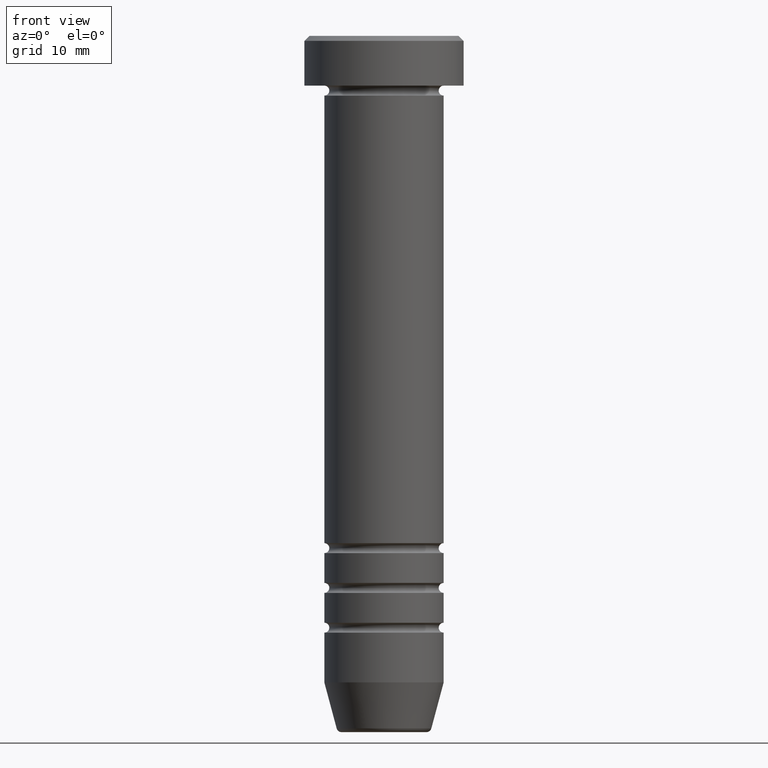
[diagram: clean part render]
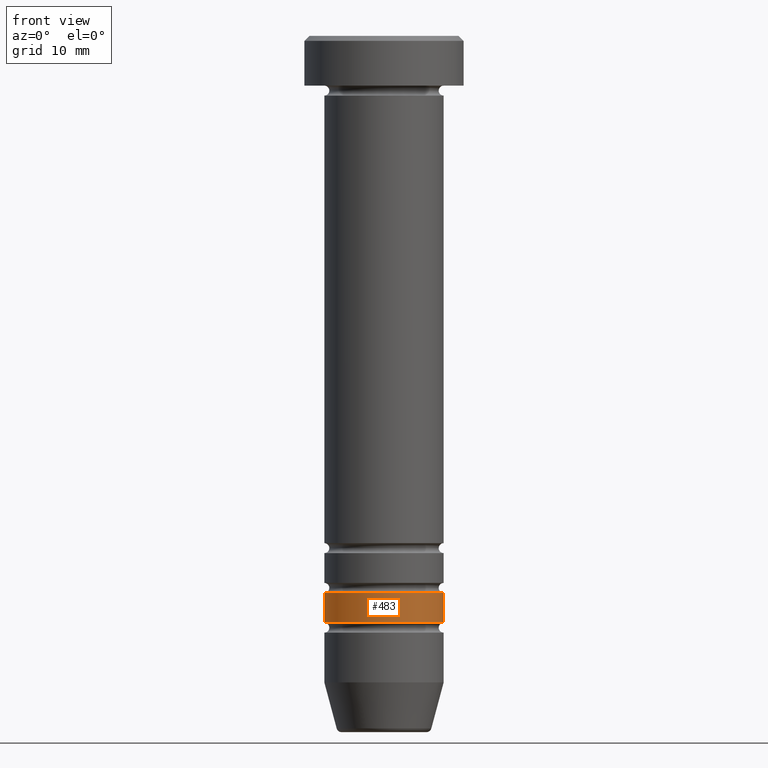
[diagram: same view with one face highlighted and labeled with its STEP entity id]
A machine part, front view. The second image highlights one B-rep face of the part: STEP entity #483.
In plain terms, the highlighted cylindrical surface (partial cylindrical patch) has radius 6 mm, axis along (-0, -0, 1).
Its self-contained STEP definition (entity closure, byte-faithful):
#29 = DIRECTION ( 'NONE',  ( 1.000000000000000000, 0.000000000000000000, 0.000000000000000000 ) ) ;
#47 = CARTESIAN_POINT ( 'NONE',  ( -5.999999999999992895, 7.347880794884112834E-16, -59.00000000000001421 ) ) ;
#60 = EDGE_CURVE ( 'NONE', #176, #953, #712, .T. ) ;
#70 = FACE_OUTER_BOUND ( 'NONE', #333, .T. ) ;
#72 = AXIS2_PLACEMENT_3D ( 'NONE', #1041, #934, #963 ) ;
#95 = LINE ( 'NONE', #511, #523 ) ;
#112 = ORIENTED_EDGE ( 'NONE', *, *, #571, .T. ) ;
#123 = ORIENTED_EDGE ( 'NONE', *, *, #322, .F. ) ;
#161 = DIRECTION ( 'NONE',  ( -0.000000000000000000, -0.000000000000000000, 1.000000000000000000 ) ) ;
#174 = LINE ( 'NONE', #998, #243 ) ;
#176 = VERTEX_POINT ( 'NONE', #1036 ) ;
#200 = CARTESIAN_POINT ( 'NONE',  ( 0.000000000000000000, 0.000000000000000000, -56.00000000000001421 ) ) ;
#242 = AXIS2_PLACEMENT_3D ( 'NONE', #200, #771, #29 ) ;
#243 = VECTOR ( 'NONE', #320, 1000.000000000000000 ) ;
#313 = CARTESIAN_POINT ( 'NONE',  ( 6.000000000000000000, 0.000000000000000000, -56.00000000000001421 ) ) ;
#320 = DIRECTION ( 'NONE',  ( -0.000000000000000000, -0.000000000000000000, 1.000000000000000000 ) ) ;
#322 = EDGE_CURVE ( 'NONE', #923, #176, #95, .T. ) ;
#333 = EDGE_LOOP ( 'NONE', ( #123, #1005, #112, #854 ) ) ;
#337 = DIRECTION ( 'NONE',  ( 1.000000000000000000, 0.000000000000000000, 0.000000000000000000 ) ) ;
#453 = CYLINDRICAL_SURFACE ( 'NONE', #72, 5.999999999999996447 ) ;
#483 = ADVANCED_FACE ( 'NONE', ( #70 ), #453, .T. ) ;
#511 = CARTESIAN_POINT ( 'NONE',  ( -5.999999999999996447, 7.347880794884115792E-16, 0.000000000000000000 ) ) ;
#523 = VECTOR ( 'NONE', #697, 1000.000000000000000 ) ;
#571 = EDGE_CURVE ( 'NONE', #902, #953, #174, .T. ) ;
#635 = CARTESIAN_POINT ( 'NONE',  ( 0.000000000000000000, 0.000000000000000000, -59.00000000000001421 ) ) ;
#697 = DIRECTION ( 'NONE',  ( -0.000000000000000000, -0.000000000000000000, 1.000000000000000000 ) ) ;
#712 = CIRCLE ( 'NONE', #242, 6.000000000000000000 ) ;
#734 = AXIS2_PLACEMENT_3D ( 'NONE', #635, #161, #337 ) ;
#771 = DIRECTION ( 'NONE',  ( -0.000000000000000000, -0.000000000000000000, 1.000000000000000000 ) ) ;
#780 = CARTESIAN_POINT ( 'NONE',  ( 5.999999999999992895, 0.000000000000000000, -59.00000000000001421 ) ) ;
#854 = ORIENTED_EDGE ( 'NONE', *, *, #60, .F. ) ;
#902 = VERTEX_POINT ( 'NONE', #780 ) ;
#923 = VERTEX_POINT ( 'NONE', #47 ) ;
#932 = EDGE_CURVE ( 'NONE', #923, #902, #999, .T. ) ;
#934 = DIRECTION ( 'NONE',  ( -0.000000000000000000, -0.000000000000000000, 1.000000000000000000 ) ) ;
#953 = VERTEX_POINT ( 'NONE', #313 ) ;
#963 = DIRECTION ( 'NONE',  ( 1.000000000000000000, 0.000000000000000000, 0.000000000000000000 ) ) ;
#998 = CARTESIAN_POINT ( 'NONE',  ( 5.999999999999996447, 0.000000000000000000, 0.000000000000000000 ) ) ;
#999 = CIRCLE ( 'NONE', #734, 5.999999999999992895 ) ;
#1005 = ORIENTED_EDGE ( 'NONE', *, *, #932, .T. ) ;
#1036 = CARTESIAN_POINT ( 'NONE',  ( -6.000000000000000888, 7.347880794884120722E-16, -56.00000000000001421 ) ) ;
#1041 = CARTESIAN_POINT ( 'NONE',  ( 0.000000000000000000, 0.000000000000000000, 0.000000000000000000 ) ) ;